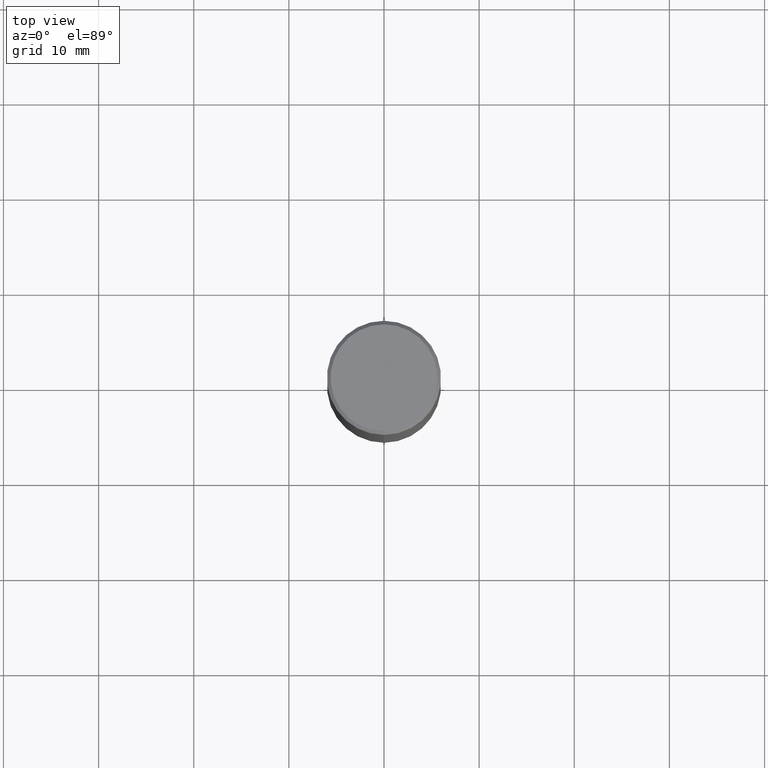
[diagram: clean part render]
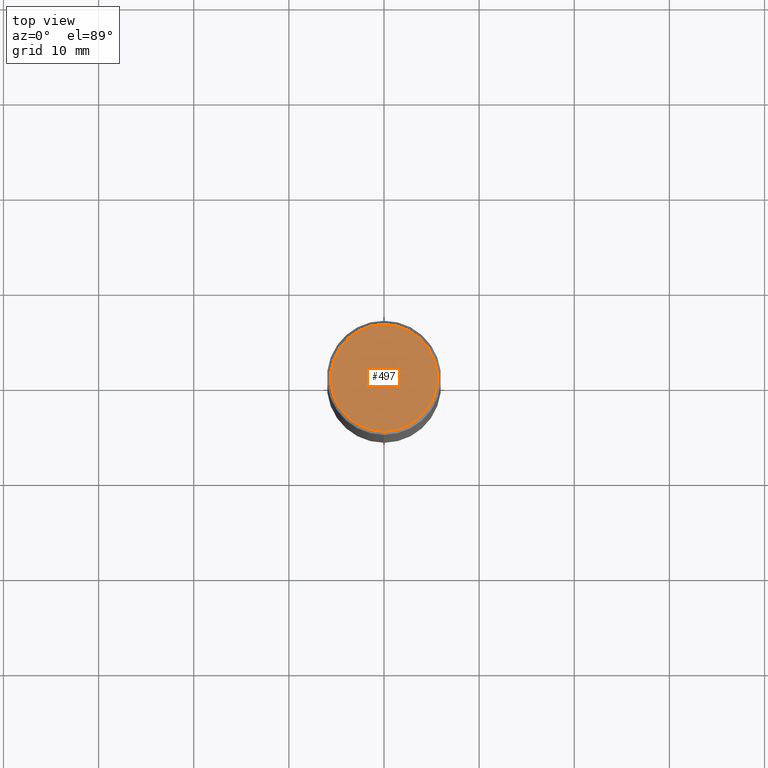
[diagram: same view with one face highlighted and labeled with its STEP entity id]
A machine part, top view. The second image highlights one B-rep face of the part: STEP entity #497.
In plain terms, the highlighted planar face has unit normal (0, -0, -1).
Its self-contained STEP definition (entity closure, byte-faithful):
#6 = PLANE ( 'NONE',  #420 ) ;
#24 = DIRECTION ( 'NONE',  ( -2.445465414360645907E-29, 3.491486196128866815E-15, 1.000000000000000000 ) ) ;
#47 = DIRECTION ( 'NONE',  ( 6.982962677686265922E-15, 1.000000000000000000, -3.491486196128866815E-15 ) ) ;
#49 = DIRECTION ( 'NONE',  ( 2.445465414360645627E-29, -3.491486196128866815E-15, -1.000000000000000000 ) ) ;
#74 = DIRECTION ( 'NONE',  ( -6.982962677686266711E-15, -1.000000000000000000, 3.491486196128867604E-15 ) ) ;
#88 = VERTEX_POINT ( 'NONE', #411 ) ;
#141 = EDGE_CURVE ( 'NONE', #480, #88, #434, .T. ) ;
#174 = DIRECTION ( 'NONE',  ( -2.445465414360645907E-29, 3.491486196128866815E-15, 1.000000000000000000 ) ) ;
#203 = CARTESIAN_POINT ( 'NONE',  ( -3.381114317021096845E-45, 4.827348567715985194E-31, 1.382605657461351378E-16 ) ) ;
#218 = ORIENTED_EDGE ( 'NONE', *, *, #141, .T. ) ;
#256 = CARTESIAN_POINT ( 'NONE',  ( 1.544631344304201972E-15, 0.2211999999999999800, -7.031864637106377532E-16 ) ) ;
#330 = AXIS2_PLACEMENT_3D ( 'NONE', #384, #24, #74 ) ;
#333 = DIRECTION ( 'NONE',  ( -6.982962677686266711E-15, -1.000000000000000000, 3.491486196128867604E-15 ) ) ;
#352 = EDGE_CURVE ( 'NONE', #88, #480, #426, .T. ) ;
#377 = FACE_OUTER_BOUND ( 'NONE', #442, .T. ) ;
#384 = CARTESIAN_POINT ( 'NONE',  ( -3.381114317021096845E-45, 4.827348567715985194E-31, 1.382605657461351378E-16 ) ) ;
#406 = AXIS2_PLACEMENT_3D ( 'NONE', #203, #174, #333 ) ;
#411 = CARTESIAN_POINT ( 'NONE',  ( -1.568995892090348679E-15, -0.2211999999999999800, 9.105773123298403243E-16 ) ) ;
#420 = AXIS2_PLACEMENT_3D ( 'NONE', #256, #49, #47 ) ;
#426 = CIRCLE ( 'NONE', #330, 0.2211999999999999800 ) ;
#434 = CIRCLE ( 'NONE', #406, 0.2211999999999999800 ) ;
#442 = EDGE_LOOP ( 'NONE', ( #218, #511 ) ) ;
#445 = CARTESIAN_POINT ( 'NONE',  ( 1.597003564386849249E-15, 0.2211999999999999800, -6.340561808375700980E-16 ) ) ;
#480 = VERTEX_POINT ( 'NONE', #445 ) ;
#497 = ADVANCED_FACE ( 'NONE', ( #377 ), #6, .F. ) ;
#511 = ORIENTED_EDGE ( 'NONE', *, *, #352, .T. ) ;